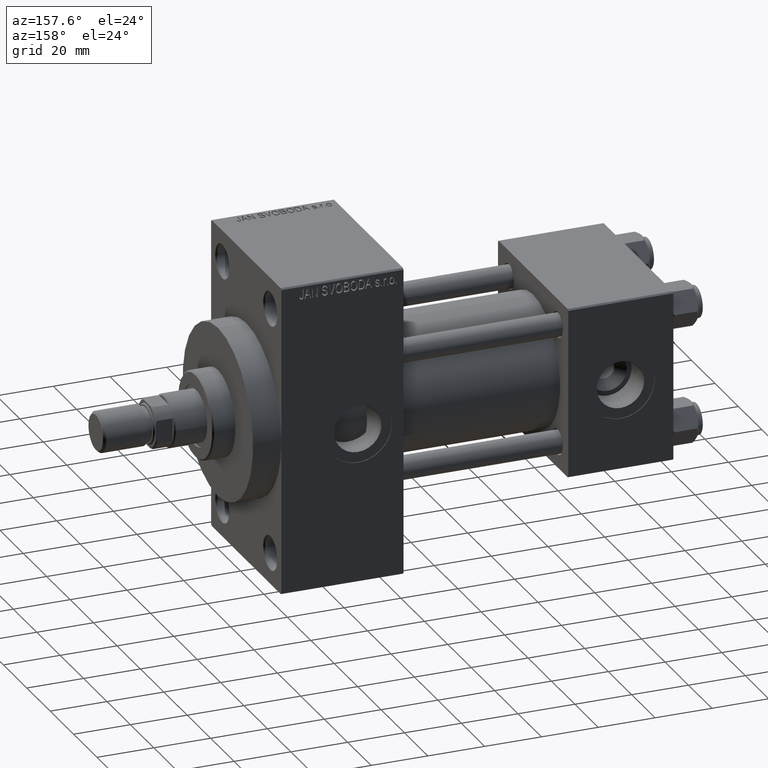
[diagram: clean part render]
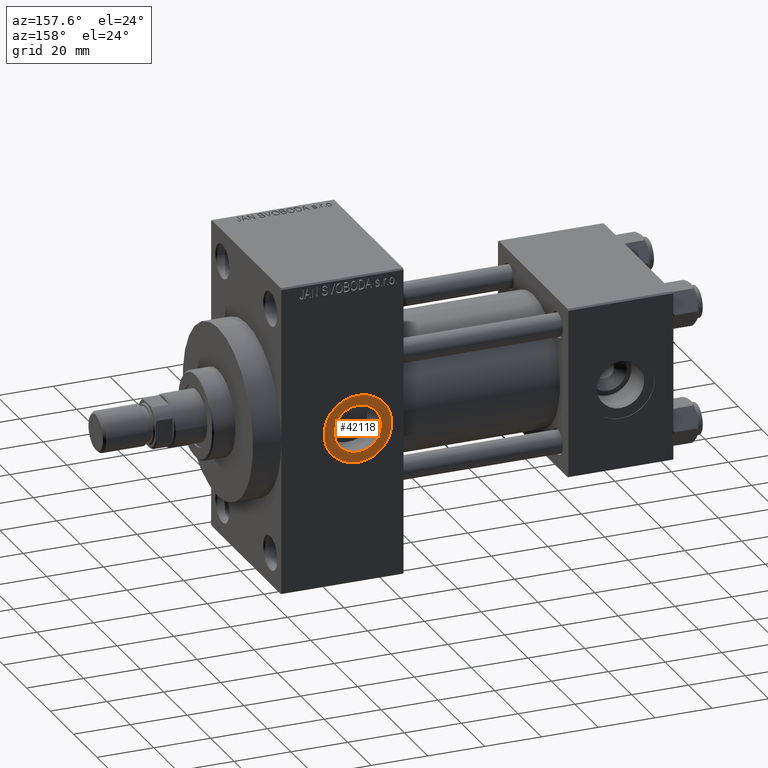
[diagram: same view with one face highlighted and labeled with its STEP entity id]
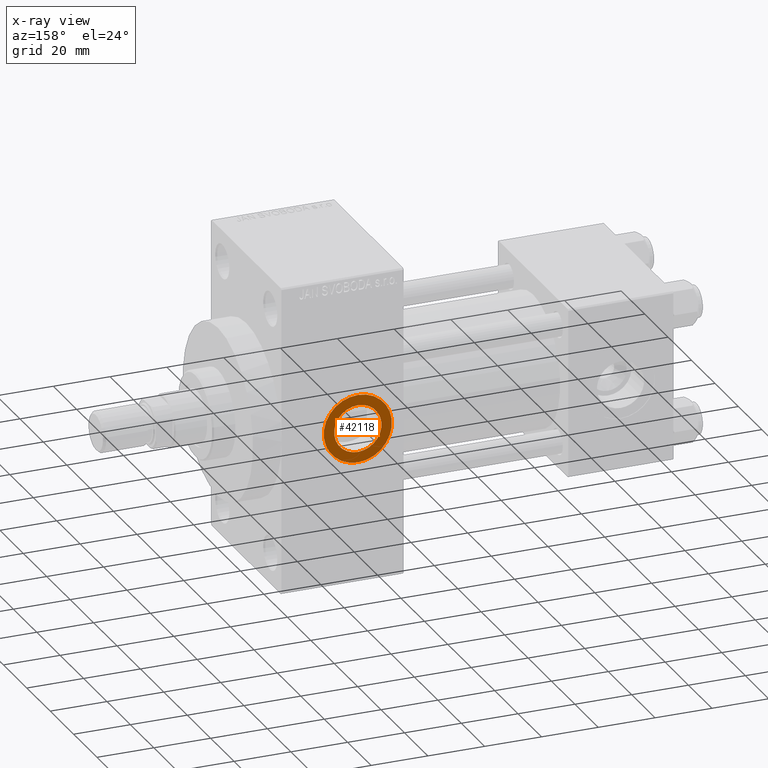
[diagram: x-ray of the same camera — body ghosted, the highlighted face saturated]
A machine part, auxiliary view. The second image highlights one B-rep face of the part: STEP entity #42118.
The next image is the same camera in x-ray: the body ghosted, the highlighted face saturated — about 0% of this face is hidden behind the body in this view.
In plain terms, the highlighted planar face has unit normal (0, 1, 0).
Its self-contained STEP definition (entity closure, byte-faithful):
#2113 = EDGE_CURVE ( 'NONE', #44695, #14903, #27545, .T. ) ;
#2436 = FACE_BOUND ( 'NONE', #31701, .T. ) ;
#2509 = ORIENTED_EDGE ( 'NONE', *, *, #2113, .F. ) ;
#4148 = CARTESIAN_POINT ( 'NONE',  ( 111.0000000000000000, 29.79999999999999716, -11.99999999999998934 ) ) ;
#7639 = CIRCLE ( 'NONE', #27660, 8.329999999999998295 ) ;
#7823 = ORIENTED_EDGE ( 'NONE', *, *, #15099, .F. ) ;
#9135 = DIRECTION ( 'NONE',  ( 0.000000000000000000, 0.000000000000000000, 1.000000000000000000 ) ) ;
#10645 = DIRECTION ( 'NONE',  ( 0.000000000000000000, 0.000000000000000000, 1.000000000000000000 ) ) ;
#11386 = AXIS2_PLACEMENT_3D ( 'NONE', #25591, #21504, #10645 ) ;
#11850 = AXIS2_PLACEMENT_3D ( 'NONE', #45729, #12682, #27391 ) ;
#12682 = DIRECTION ( 'NONE',  ( 0.000000000000000000, 1.000000000000000000, 0.000000000000000000 ) ) ;
#14336 = EDGE_LOOP ( 'NONE', ( #16403, #38013 ) ) ;
#14903 = VERTEX_POINT ( 'NONE', #31490 ) ;
#15099 = EDGE_CURVE ( 'NONE', #14903, #44695, #7639, .T. ) ;
#15868 = CIRCLE ( 'NONE', #28940, 11.99999999999998934 ) ;
#16403 = ORIENTED_EDGE ( 'NONE', *, *, #45454, .T. ) ;
#19102 = VERTEX_POINT ( 'NONE', #4148 ) ;
#20324 = CIRCLE ( 'NONE', #11850, 11.99999999999998934 ) ;
#21148 = CARTESIAN_POINT ( 'NONE',  ( 111.0000000000000000, 29.79999999999999716, 11.99999999999998934 ) ) ;
#21504 = DIRECTION ( 'NONE',  ( 0.000000000000000000, 1.000000000000000000, 0.000000000000000000 ) ) ;
#22900 = DIRECTION ( 'NONE',  ( 0.000000000000000000, 1.000000000000000000, 0.000000000000000000 ) ) ;
#24847 = CARTESIAN_POINT ( 'NONE',  ( 111.0000000000000000, 29.79999999999999716, 0.000000000000000000 ) ) ;
#25064 = EDGE_CURVE ( 'NONE', #19102, #38205, #20324, .T. ) ;
#25591 = CARTESIAN_POINT ( 'NONE',  ( 111.0000000000000000, 29.79999999999999716, 0.000000000000000000 ) ) ;
#27391 = DIRECTION ( 'NONE',  ( 0.000000000000000000, 0.000000000000000000, 1.000000000000000000 ) ) ;
#27545 = CIRCLE ( 'NONE', #11386, 8.329999999999998295 ) ;
#27660 = AXIS2_PLACEMENT_3D ( 'NONE', #46651, #43029, #32866 ) ;
#28940 = AXIS2_PLACEMENT_3D ( 'NONE', #46040, #22900, #9135 ) ;
#29849 = CARTESIAN_POINT ( 'NONE',  ( 111.0000000000000000, 29.79999999999999716, 8.329999999999998295 ) ) ;
#31490 = CARTESIAN_POINT ( 'NONE',  ( 111.0000000000000000, 29.79999999999999716, -8.329999999999998295 ) ) ;
#31701 = EDGE_LOOP ( 'NONE', ( #2509, #7823 ) ) ;
#32787 = PLANE ( 'NONE',  #37324 ) ;
#32866 = DIRECTION ( 'NONE',  ( 0.000000000000000000, 0.000000000000000000, 1.000000000000000000 ) ) ;
#36187 = DIRECTION ( 'NONE',  ( 0.000000000000000000, 1.000000000000000000, 0.000000000000000000 ) ) ;
#37324 = AXIS2_PLACEMENT_3D ( 'NONE', #24847, #36187, #47513 ) ;
#38013 = ORIENTED_EDGE ( 'NONE', *, *, #25064, .T. ) ;
#38205 = VERTEX_POINT ( 'NONE', #21148 ) ;
#42118 = ADVANCED_FACE ( 'NONE', ( #2436, #46574 ), #32787, .T. ) ;
#43029 = DIRECTION ( 'NONE',  ( 0.000000000000000000, 1.000000000000000000, 0.000000000000000000 ) ) ;
#44695 = VERTEX_POINT ( 'NONE', #29849 ) ;
#45454 = EDGE_CURVE ( 'NONE', #38205, #19102, #15868, .T. ) ;
#45729 = CARTESIAN_POINT ( 'NONE',  ( 111.0000000000000000, 29.79999999999999716, 0.000000000000000000 ) ) ;
#46040 = CARTESIAN_POINT ( 'NONE',  ( 111.0000000000000000, 29.79999999999999716, 0.000000000000000000 ) ) ;
#46574 = FACE_OUTER_BOUND ( 'NONE', #14336, .T. ) ;
#46651 = CARTESIAN_POINT ( 'NONE',  ( 111.0000000000000000, 29.79999999999999716, 0.000000000000000000 ) ) ;
#47513 = DIRECTION ( 'NONE',  ( 0.000000000000000000, -0.000000000000000000, 1.000000000000000000 ) ) ;